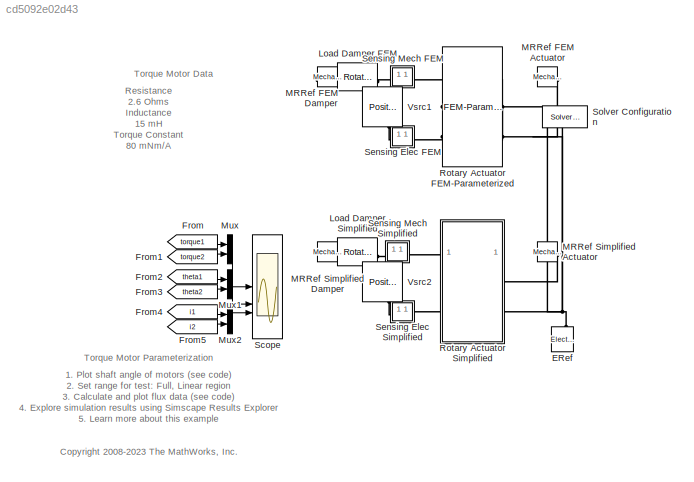
MODEL slx_cd5092e02d43
KIND model
CONFIG AbsTol = auto
CONFIG EnableMultiTasking = on
CONFIG FixedStep = auto
CONFIG MaxStep = auto
CONFIG MinStep = auto
CONFIG PreLoadFcn = load ParameterizeMotorTorqueData\nx0 = 20;                \nxmin = 20;              \nxmax = 70;       \nV = 13.5;       \n\n\n\n\n
CONFIG RelTol = 1e-3
CONFIG SampleTimeConstraint = Unconstrained
CONFIG SolverName = VariableStepAuto
CONFIG StartTime = 0.0
CONFIG StopTime = 10
BLOCK [Reference] ERef  REF=fl_lib/Electrical/Electrical Elements/Electrical Reference
  NameLocation = left
  SourceBlock = fl_lib/Electrical/Electrical Elements/Electrical Reference
  SourceType = Electrical Reference
BLOCK [From] From
  GotoTag = torque1
  TagVisibility = global
BLOCK [From] From1
  GotoTag = torque2
  TagVisibility = global
BLOCK [From] From2
  GotoTag = theta1
  TagVisibility = global
BLOCK [From] From3
  GotoTag = theta2
  TagVisibility = global
BLOCK [From] From4
  GotoTag = i1
  TagVisibility = global
BLOCK [From] From5
  GotoTag = i2
  TagVisibility = global
BLOCK [Reference] Load Damper FEM  REF=fl_lib/Mechanical/Rotational Elements/Rotational Damper
  NameLocation = top
  SourceBlock = fl_lib/Mechanical/Rotational Elements/Rotational Damper
  SourceType = Rotational Damper
BLOCK [Reference] Load Damper Simplified  REF=fl_lib/Mechanical/Rotational Elements/Rotational Damper
  NameLocation = top
  SourceBlock = fl_lib/Mechanical/Rotational Elements/Rotational Damper
  SourceType = Rotational Damper
BLOCK [Reference] MRRef FEM Actuator  REF=fl_lib/Mechanical/Rotational Elements/Mechanical
Rotational Reference
  NameLocation = top
  SourceBlock = fl_lib/Mechanical/Rotational Elements/Mechanical\nRotational Reference
  SourceType = Mechanical\nRotational Reference
BLOCK [Reference] MRRef FEM Damper  REF=fl_lib/Mechanical/Rotational Elements/Mechanical
Rotational Reference
  NameLocation = top
  SourceBlock = fl_lib/Mechanical/Rotational Elements/Mechanical\nRotational Reference
  SourceType = Mechanical\nRotational Reference
BLOCK [Reference] MRRef Simplified Actuator  REF=fl_lib/Mechanical/Rotational Elements/Mechanical
Rotational Reference
  NameLocation = top
  SourceBlock = fl_lib/Mechanical/Rotational Elements/Mechanical\nRotational Reference
  SourceType = Mechanical\nRotational Reference
BLOCK [Reference] MRRef Simplified Damper  REF=fl_lib/Mechanical/Rotational Elements/Mechanical
Rotational Reference
  SourceBlock = fl_lib/Mechanical/Rotational Elements/Mechanical\nRotational Reference
  SourceType = Mechanical\nRotational Reference
BLOCK [Mux] Mux
  DisplayOption = bar
  Inputs = 2
BLOCK [Mux] Mux1
  DisplayOption = bar
  Inputs = 2
BLOCK [Mux] Mux2
  DisplayOption = bar
  Inputs = 2
BLOCK [Reference] Rotary Actuator FEM-Parameterized   REF=ee_lib/Electromechanical/Mechatronic
Actuators/FEM-Parameterized
Rotary Actuator
  SourceBlock = ee_lib/Electromechanical/Mechatronic\nActuators/FEM-Parameterized\nRotary Actuator
  SourceType = FEM-Parameterized\nRotary Actuator
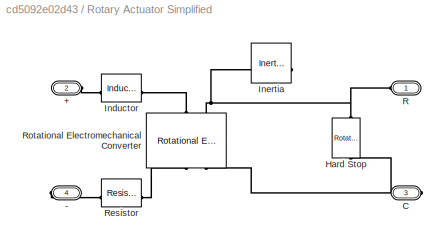
BLOCK [SubSystem] Rotary Actuator Simplified 
  Tag = PublishSubsystem
BLOCK [PMIOPort] Rotary Actuator Simplified /+
  Port = 2
  Side = Left
BLOCK [PMIOPort] Rotary Actuator Simplified /-
  Port = 4
  Side = Right
BLOCK [PMIOPort] Rotary Actuator Simplified /C
  Port = 3
  Side = Right
BLOCK [Reference] Rotary Actuator Simplified /Hard Stop  REF=fl_lib/Mechanical/Rotational Elements/Rotational Hard Stop
  NameLocation = right
  SourceBlock = fl_lib/Mechanical/Rotational Elements/Rotational Hard Stop
  SourceType = Rotational Hard Stop
BLOCK [Reference] Rotary Actuator Simplified /Inductor  REF=fl_lib/Electrical/Electrical Elements/Inductor
  SourceBlock = fl_lib/Electrical/Electrical Elements/Inductor
  SourceType = Inductor
BLOCK [Reference] Rotary Actuator Simplified /Inertia  REF=fl_lib/Mechanical/Rotational Elements/Inertia
  NameLocation = top
  SourceBlock = fl_lib/Mechanical/Rotational Elements/Inertia
  SourceType = Inertia
BLOCK [PMIOPort] Rotary Actuator Simplified /R
  Side = Left
BLOCK [Reference] Rotary Actuator Simplified /Resistor  REF=fl_lib/Electrical/Electrical Elements/Resistor
  NameLocation = top
  SourceBlock = fl_lib/Electrical/Electrical Elements/Resistor
  SourceType = Resistor
BLOCK [Reference] Rotary Actuator Simplified /Rotational Electromechanical Converter  REF=fl_lib/Electrical/Electrical Elements/Rotational
Electromechanical
Converter
  NameLocation = right
  SourceBlock = fl_lib/Electrical/Electrical Elements/Rotational\nElectromechanical\nConverter
  SourceType = Rotational\nElectromechanical\nConverter
BLOCK [Scope] Scope
  Floating = off
  NumInputPorts = 3
  ScopeSpecificationString = Simulink.scopes.TimeScopeBlockCfg('CurrentConfiguration', extmgr.ConfigurationSet(extmgr.Configuration('Core','General UI',true),extmgr.Configuration('Core','Source UI',true),extmgr.Configuration('Sources','WiredSimulink',true,'DataLogging',true,'DataLoggingVariableName','TorqueData','DataLoggingSaveFormat','StructureWithTime','DataLoggingLimitDataPoints',true,'DataLoggingDecimation','1'),extmgr.C...<+3021ch>
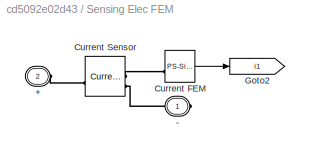
BLOCK [SubSystem] Sensing Elec FEM
BLOCK [PMIOPort] Sensing Elec FEM/+
  Port = 2
  Side = Left
BLOCK [PMIOPort] Sensing Elec FEM/-
  Side = Right
BLOCK [Reference] Sensing Elec FEM/Current FEM  REF=nesl_utility/PS-Simulink
Converter
  NameLocation = top
  SourceBlock = nesl_utility/PS-Simulink\nConverter
  SourceType = PS-Simulink\nConverter
BLOCK [Reference] Sensing Elec FEM/Current Sensor  REF=fl_lib/Electrical/Electrical Sensors/Current Sensor
  SourceBlock = fl_lib/Electrical/Electrical Sensors/Current Sensor
  SourceType = Current Sensor
BLOCK [Goto] Sensing Elec FEM/Goto2
  GotoTag = i1
  TagVisibility = global
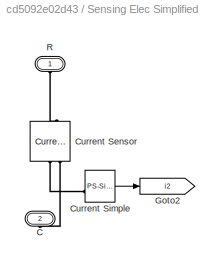
BLOCK [SubSystem] Sensing Elec Simplified
BLOCK [PMIOPort] Sensing Elec Simplified/C
  NameLocation = right
  Port = 2
  Side = Right
BLOCK [Reference] Sensing Elec Simplified/Current Sensor  REF=fl_lib/Electrical/Electrical Sensors/Current Sensor
  NameLocation = right
  SourceBlock = fl_lib/Electrical/Electrical Sensors/Current Sensor
  SourceType = Current Sensor
BLOCK [Reference] Sensing Elec Simplified/Current Simple  REF=nesl_utility/PS-Simulink
Converter
  SourceBlock = nesl_utility/PS-Simulink\nConverter
  SourceType = PS-Simulink\nConverter
BLOCK [Goto] Sensing Elec Simplified/Goto2
  GotoTag = i2
  TagVisibility = global
BLOCK [PMIOPort] Sensing Elec Simplified/R
  NameLocation = right
  Side = Left
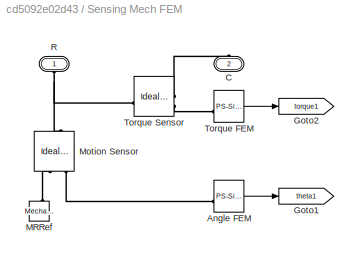
BLOCK [SubSystem] Sensing Mech FEM 
  NameLocation = top
BLOCK [Reference] Sensing Mech FEM /Angle FEM  REF=nesl_utility/PS-Simulink
Converter
  SourceBlock = nesl_utility/PS-Simulink\nConverter
  SourceType = PS-Simulink\nConverter
BLOCK [PMIOPort] Sensing Mech FEM /C
  NameLocation = right
  Port = 2
  Side = Right
BLOCK [Goto] Sensing Mech FEM /Goto1
  GotoTag = theta1
  TagVisibility = global
BLOCK [Goto] Sensing Mech FEM /Goto2
  GotoTag = torque1
  TagVisibility = global
BLOCK [Reference] Sensing Mech FEM /MRRef  REF=fl_lib/Mechanical/Rotational Elements/Mechanical
Rotational Reference
  NameLocation = right
  SourceBlock = fl_lib/Mechanical/Rotational Elements/Mechanical\nRotational Reference
  SourceType = Mechanical\nRotational Reference
BLOCK [Reference] Sensing Mech FEM /Motion Sensor  REF=fl_lib/Mechanical/Mechanical Sensors/Ideal Rotational
Motion Sensor
  NameLocation = right
  SourceBlock = fl_lib/Mechanical/Mechanical Sensors/Ideal Rotational\nMotion Sensor
  SourceType = Ideal Rotational\nMotion Sensor
BLOCK [PMIOPort] Sensing Mech FEM /R
  NameLocation = right
  Side = Left
BLOCK [Reference] Sensing Mech FEM /Torque FEM  REF=nesl_utility/PS-Simulink
Converter
  SourceBlock = nesl_utility/PS-Simulink\nConverter
  SourceType = PS-Simulink\nConverter
BLOCK [Reference] Sensing Mech FEM /Torque Sensor  REF=fl_lib/Mechanical/Mechanical Sensors/Ideal Torque Sensor
  SourceBlock = fl_lib/Mechanical/Mechanical Sensors/Ideal Torque Sensor
  SourceType = Ideal Torque Sensor
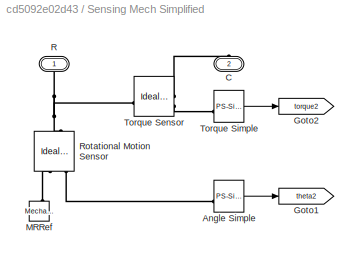
BLOCK [SubSystem] Sensing Mech Simplified
  NameLocation = top
BLOCK [Reference] Sensing Mech Simplified/Angle Simple  REF=nesl_utility/PS-Simulink
Converter
  SourceBlock = nesl_utility/PS-Simulink\nConverter
  SourceType = PS-Simulink\nConverter
BLOCK [PMIOPort] Sensing Mech Simplified/C
  NameLocation = right
  Port = 2
  Side = Right
BLOCK [Goto] Sensing Mech Simplified/Goto1
  GotoTag = theta2
  TagVisibility = global
BLOCK [Goto] Sensing Mech Simplified/Goto2
  GotoTag = torque2
  TagVisibility = global
BLOCK [Reference] Sensing Mech Simplified/MRRef  REF=fl_lib/Mechanical/Rotational Elements/Mechanical
Rotational Reference
  NameLocation = right
  SourceBlock = fl_lib/Mechanical/Rotational Elements/Mechanical\nRotational Reference
  SourceType = Mechanical\nRotational Reference
BLOCK [PMIOPort] Sensing Mech Simplified/R
  NameLocation = right
  Side = Left
BLOCK [Reference] Sensing Mech Simplified/Rotational Motion Sensor  REF=fl_lib/Mechanical/Mechanical Sensors/Ideal Rotational
Motion Sensor
  NameLocation = right
  SourceBlock = fl_lib/Mechanical/Mechanical Sensors/Ideal Rotational\nMotion Sensor
  SourceType = Ideal Rotational\nMotion Sensor
BLOCK [Reference] Sensing Mech Simplified/Torque Sensor  REF=fl_lib/Mechanical/Mechanical Sensors/Ideal Torque Sensor
  SourceBlock = fl_lib/Mechanical/Mechanical Sensors/Ideal Torque Sensor
  SourceType = Ideal Torque Sensor
BLOCK [Reference] Sensing Mech Simplified/Torque Simple  REF=nesl_utility/PS-Simulink
Converter
  SourceBlock = nesl_utility/PS-Simulink\nConverter
  SourceType = PS-Simulink\nConverter
BLOCK [Reference] Solver Configuration  REF=nesl_utility/Solver
Configuration
  SourceBlock = nesl_utility/Solver\nConfiguration
  SourceType = Solver\nConfiguration
BLOCK [Reference] Vsrc1  REF=ee_lib/Sources/Positive Supply Rail
  AttributesFormatString = %<v0> %<v0_unit>
  NameLocation = left
  SourceBlock = ee_lib/Sources/Positive Supply Rail
  SourceType = Positive Supply Rail
BLOCK [Reference] Vsrc2  REF=ee_lib/Sources/Positive Supply Rail
  AttributesFormatString = %<v0> %<v0_unit>
  NameLocation = left
  SourceBlock = ee_lib/Sources/Positive Supply Rail
  SourceType = Positive Supply Rail
ANNOTATION (root): Resistance 2.6 Ohms Inductance 15 mH Torque Constant 80 mNm/A Weight 320 g Rotor Diameter 40 mm
ANNOTATION (root): 1. Plot shaft angle of motors ( see code ) 2. Set range for test: Full , Linear region 3. Calculate and plot flux data ( see code ) 4. Explore simulation results using Simscape Results Explorer 5. Learn more about this example
ANNOTATION (root): Torque Motor Data
ANNOTATION (root): <copyright redacted>
ANNOTATION (root): Torque Motor Parameterization
LINE From1:1 -> Mux:2
LINE From2:1 -> Mux1:1
LINE From3:1 -> Mux1:2
LINE From4:1 -> Mux2:1
LINE From5:1 -> Mux2:2
LINE From:1 -> Mux:1
LINE Mux1:1 -> Scope:2
LINE Mux2:1 -> Scope:3
LINE Mux:1 -> Scope:1
LINE Sensing Elec FEM/Current FEM:1 -> Sensing Elec FEM/Goto2:1
LINE Sensing Elec Simplified/Current Simple:1 -> Sensing Elec Simplified/Goto2:1
LINE Sensing Mech FEM /Angle FEM:1 -> Sensing Mech FEM /Goto1:1
LINE Sensing Mech FEM /Torque FEM:1 -> Sensing Mech FEM /Goto2:1
LINE Sensing Mech Simplified/Angle Simple:1 -> Sensing Mech Simplified/Goto1:1
LINE Sensing Mech Simplified/Torque Simple:1 -> Sensing Mech Simplified/Goto2:1
PNET net1: ERef:LConn1 -- Rotary Actuator FEM-Parameterized :RConn1 -- Rotary Actuator Simplified :RConn2 -- Solver Configuration:RConn1
PLINE Load Damper FEM:LConn1 -- Sensing Mech FEM :RConn1
PLINE Load Damper FEM:RConn1 -- MRRef FEM Damper:LConn1
PLINE Load Damper Simplified:LConn1 -- Sensing Mech Simplified:RConn1
PLINE Load Damper Simplified:RConn1 -- MRRef Simplified Damper:LConn1
PLINE MRRef FEM Actuator:LConn1 -- Rotary Actuator FEM-Parameterized :RConn2
PLINE MRRef Simplified Actuator:LConn1 -- Rotary Actuator Simplified :RConn1
PLINE Rotary Actuator FEM-Parameterized :LConn1 -- Sensing Elec FEM:RConn1
PLINE Rotary Actuator FEM-Parameterized :LConn2 -- Sensing Mech FEM :LConn1
PLINE Rotary Actuator Simplified /+:RConn1 -- Rotary Actuator Simplified /Inductor:LConn1
PLINE Rotary Actuator Simplified /-:RConn1 -- Rotary Actuator Simplified /Resistor:LConn1
PNET net2: Rotary Actuator Simplified /C:RConn1 -- Rotary Actuator Simplified /Hard Stop:RConn1 -- Rotary Actuator Simplified /Rotational Electromechanical Converter:RConn2
PNET net3: Rotary Actuator Simplified /Hard Stop:LConn1 -- Rotary Actuator Simplified /Inertia:LConn1 -- Rotary Actuator Simplified /R:RConn1 -- Rotary Actuator Simplified /Rotational Electromechanical Converter:LConn2
PLINE Rotary Actuator Simplified /Inductor:RConn1 -- Rotary Actuator Simplified /Rotational Electromechanical Converter:LConn1
PLINE Rotary Actuator Simplified /Resistor:RConn1 -- Rotary Actuator Simplified /Rotational Electromechanical Converter:RConn1
PLINE Rotary Actuator Simplified :LConn1 -- Sensing Mech Simplified:LConn1
PLINE Rotary Actuator Simplified :LConn2 -- Sensing Elec Simplified:RConn1
PLINE Sensing Elec FEM/+:RConn1 -- Sensing Elec FEM/Current Sensor:LConn1
PLINE Sensing Elec FEM/-:RConn1 -- Sensing Elec FEM/Current Sensor:RConn2
PLINE Sensing Elec FEM/Current FEM:LConn1 -- Sensing Elec FEM/Current Sensor:RConn1
PLINE Sensing Elec FEM:LConn1 -- Vsrc1:RConn1
PLINE Sensing Elec Simplified/C:RConn1 -- Sensing Elec Simplified/Current Sensor:RConn2
PLINE Sensing Elec Simplified/Current Sensor:LConn1 -- Sensing Elec Simplified/R:RConn1
PLINE Sensing Elec Simplified/Current Sensor:RConn1 -- Sensing Elec Simplified/Current Simple:LConn1
PLINE Sensing Elec Simplified:LConn1 -- Vsrc2:RConn1
PLINE Sensing Mech FEM /Angle FEM:LConn1 -- Sensing Mech FEM /Motion Sensor:RConn3
PLINE Sensing Mech FEM /C:RConn1 -- Sensing Mech FEM /Torque Sensor:RConn1
PLINE Sensing Mech FEM /MRRef:LConn1 -- Sensing Mech FEM /Motion Sensor:RConn1
PNET net4: Sensing Mech FEM /Motion Sensor:LConn1 -- Sensing Mech FEM /R:RConn1 -- Sensing Mech FEM /Torque Sensor:LConn1
PLINE Sensing Mech FEM /Torque FEM:LConn1 -- Sensing Mech FEM /Torque Sensor:RConn2
PLINE Sensing Mech Simplified/Angle Simple:LConn1 -- Sensing Mech Simplified/Rotational Motion Sensor:RConn3
PLINE Sensing Mech Simplified/C:RConn1 -- Sensing Mech Simplified/Torque Sensor:RConn1
PLINE Sensing Mech Simplified/MRRef:LConn1 -- Sensing Mech Simplified/Rotational Motion Sensor:RConn1
PNET net5: Sensing Mech Simplified/R:RConn1 -- Sensing Mech Simplified/Rotational Motion Sensor:LConn1 -- Sensing Mech Simplified/Torque Sensor:LConn1
PLINE Sensing Mech Simplified/Torque Sensor:RConn2 -- Sensing Mech Simplified/Torque Simple:LConn1
note: PNET lines group multi-terminal physical nets as a canonical sorted terminal list (undirected conserving connections); 2-terminal nets keep the pairwise PLINE form
